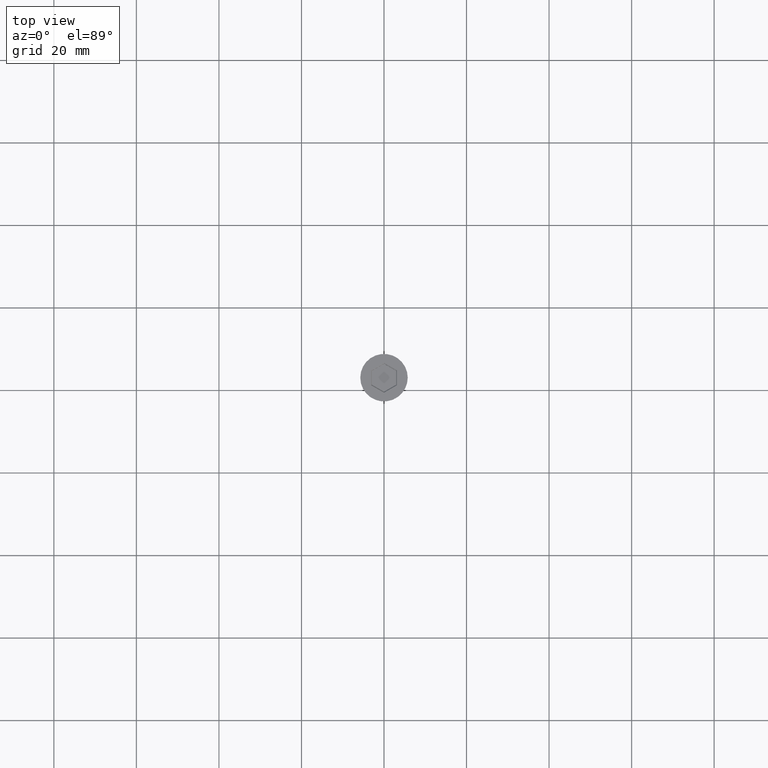
[diagram: clean part render]
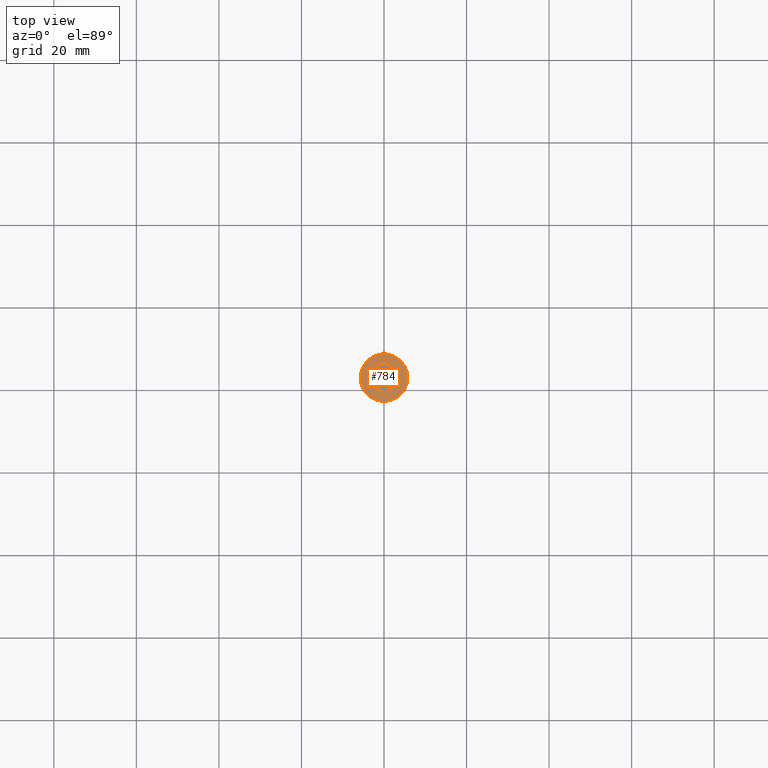
[diagram: same view with one face highlighted and labeled with its STEP entity id]
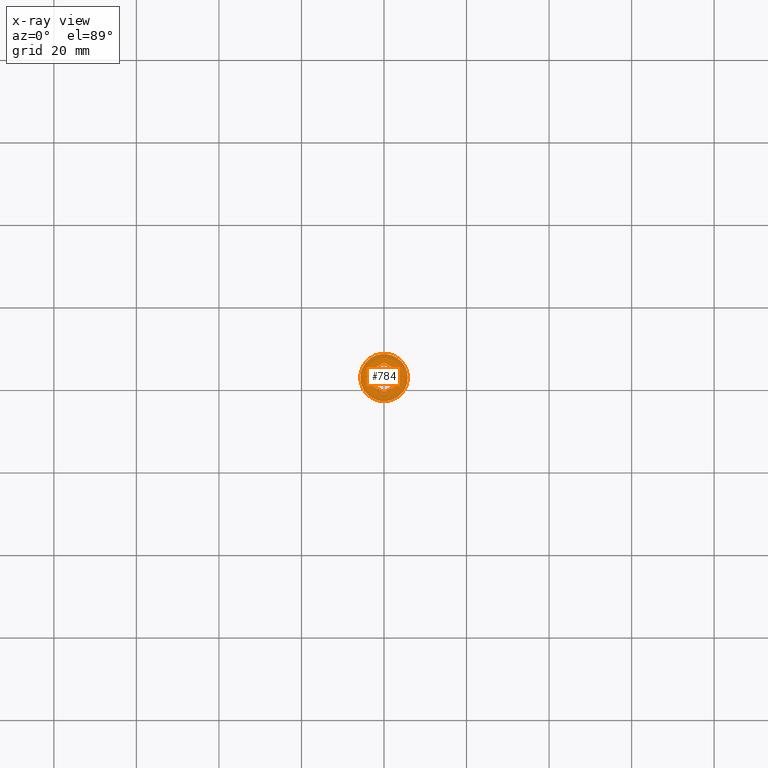
[diagram: x-ray of the same camera — body ghosted, the highlighted face saturated]
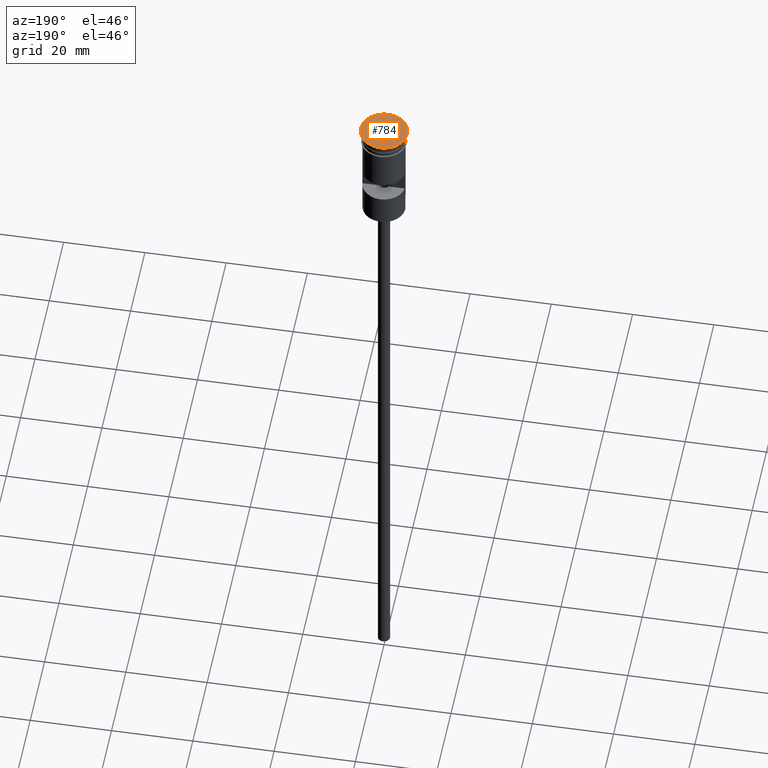
[diagram: same view with one face highlighted and labeled with its STEP entity id]
A machine part, top view. The second image highlights one B-rep face of the part: STEP entity #784.
The next image is the same camera in x-ray: the body ghosted, the highlighted face saturated — about 0% of this face is hidden behind the body in this view.
A second angle (auxiliary view) of the same face is appended — the face is thin or edge-on in the first view.
In plain terms, the highlighted planar face has unit normal (0, -0, 1).
Its self-contained STEP definition (entity closure, byte-faithful):
#7 = VERTEX_POINT ( 'NONE', #709 ) ;
#63 = DIRECTION ( 'NONE',  ( -0.8660254037844387076, -0.4999999999999998890, 0.000000000000000000 ) ) ;
#95 = VERTEX_POINT ( 'NONE', #941 ) ;
#101 = AXIS2_PLACEMENT_3D ( 'NONE', #957, #1086, #571 ) ;
#136 = CARTESIAN_POINT ( 'NONE',  ( -4.546348829811041408E-16, -3.637306695894617636, 0.000000000000000000 ) ) ;
#154 = ORIENTED_EDGE ( 'NONE', *, *, #1314, .T. ) ;
#155 = CARTESIAN_POINT ( 'NONE',  ( 5.750000000000000000, 0.000000000000000000, 0.000000000000000000 ) ) ;
#157 = LINE ( 'NONE', #1383, #1447 ) ;
#171 = VECTOR ( 'NONE', #1378, 1000.000000000000114 ) ;
#173 = AXIS2_PLACEMENT_3D ( 'NONE', #1253, #1577, #950 ) ;
#182 = VERTEX_POINT ( 'NONE', #1228 ) ;
#223 = AXIS2_PLACEMENT_3D ( 'NONE', #843, #477, #1233 ) ;
#276 = EDGE_CURVE ( 'NONE', #1208, #1323, #388, .T. ) ;
#291 = CARTESIAN_POINT ( 'NONE',  ( -3.149999999999978595, 1.703183294109395840, 0.000000000000000000 ) ) ;
#388 = LINE ( 'NONE', #882, #171 ) ;
#406 = DIRECTION ( 'NONE',  ( 0.8660254037844387076, -0.4999999999999998890, 0.000000000000000000 ) ) ;
#419 = LINE ( 'NONE', #291, #1550 ) ;
#446 = ORIENTED_EDGE ( 'NONE', *, *, #1382, .T. ) ;
#462 = EDGE_CURVE ( 'NONE', #95, #972, #922, .T. ) ;
#477 = DIRECTION ( 'NONE',  ( -0.000000000000000000, -0.000000000000000000, 1.000000000000000000 ) ) ;
#521 = EDGE_LOOP ( 'NONE', ( #446, #1439, #1029, #1165, #740, #154 ) ) ;
#533 = VERTEX_POINT ( 'NONE', #136 ) ;
#571 = DIRECTION ( 'NONE',  ( 1.000000000000000000, 0.000000000000000000, 0.000000000000000000 ) ) ;
#581 = EDGE_CURVE ( 'NONE', #1323, #7, #157, .T. ) ;
#609 = EDGE_LOOP ( 'NONE', ( #1594, #777 ) ) ;
#680 = FACE_BOUND ( 'NONE', #521, .T. ) ;
#708 = CARTESIAN_POINT ( 'NONE',  ( -3.095704393061636416E-16, 3.637306695894617192, 0.000000000000000000 ) ) ;
#709 = CARTESIAN_POINT ( 'NONE',  ( 3.149999999999979039, 1.818653347947308596, 0.000000000000000000 ) ) ;
#740 = ORIENTED_EDGE ( 'NONE', *, *, #906, .T. ) ;
#756 = DIRECTION ( 'NONE',  ( -0.8660254037844385966, 0.5000000000000001110, 0.000000000000000000 ) ) ;
#777 = ORIENTED_EDGE ( 'NONE', *, *, #462, .T. ) ;
#784 = ADVANCED_FACE ( 'NONE', ( #680, #1178 ), #1061, .T. ) ;
#790 = DIRECTION ( 'NONE',  ( 0.000000000000000000, 1.000000000000000000, 0.000000000000000000 ) ) ;
#843 = CARTESIAN_POINT ( 'NONE',  ( 0.000000000000000000, 0.000000000000000000, 0.000000000000000000 ) ) ;
#882 = CARTESIAN_POINT ( 'NONE',  ( -0.09999999999998934741, 3.579571668975661147, 0.000000000000000000 ) ) ;
#906 = EDGE_CURVE ( 'NONE', #7, #1078, #1073, .T. ) ;
#922 = CIRCLE ( 'NONE', #223, 5.750000000000000000 ) ;
#941 = CARTESIAN_POINT ( 'NONE',  ( -5.750000000000000000, 7.041719095097280880E-16, 0.000000000000000000 ) ) ;
#950 = DIRECTION ( 'NONE',  ( 1.000000000000000000, 0.000000000000000000, 0.000000000000000000 ) ) ;
#957 = CARTESIAN_POINT ( 'NONE',  ( 0.000000000000000000, 0.000000000000000000, 0.000000000000000000 ) ) ;
#972 = VERTEX_POINT ( 'NONE', #155 ) ;
#982 = CIRCLE ( 'NONE', #101, 5.750000000000000000 ) ;
#1029 = ORIENTED_EDGE ( 'NONE', *, *, #276, .T. ) ;
#1034 = VECTOR ( 'NONE', #63, 1000.000000000000000 ) ;
#1042 = EDGE_CURVE ( 'NONE', #182, #1208, #419, .T. ) ;
#1048 = DIRECTION ( 'NONE',  ( -2.546295930062981593E-16, -1.000000000000000000, 0.000000000000000000 ) ) ;
#1059 = VECTOR ( 'NONE', #1048, 1000.000000000000000 ) ;
#1061 = PLANE ( 'NONE',  #173 ) ;
#1073 = LINE ( 'NONE', #1568, #1059 ) ;
#1078 = VERTEX_POINT ( 'NONE', #1307 ) ;
#1084 = EDGE_CURVE ( 'NONE', #972, #95, #982, .T. ) ;
#1086 = DIRECTION ( 'NONE',  ( -0.000000000000000000, -0.000000000000000000, 1.000000000000000000 ) ) ;
#1165 = ORIENTED_EDGE ( 'NONE', *, *, #581, .T. ) ;
#1178 = FACE_OUTER_BOUND ( 'NONE', #609, .T. ) ;
#1208 = VERTEX_POINT ( 'NONE', #1235 ) ;
#1226 = CARTESIAN_POINT ( 'NONE',  ( -3.049999999999989608, -1.876388374866265085, 0.000000000000000000 ) ) ;
#1228 = CARTESIAN_POINT ( 'NONE',  ( -3.149999999999978595, -1.818653347947308818, 0.000000000000000000 ) ) ;
#1233 = DIRECTION ( 'NONE',  ( 1.000000000000000000, 0.000000000000000000, 0.000000000000000000 ) ) ;
#1235 = CARTESIAN_POINT ( 'NONE',  ( -3.149999999999978595, 1.818653347947308374, 0.000000000000000000 ) ) ;
#1250 = LINE ( 'NONE', #1226, #1397 ) ;
#1253 = CARTESIAN_POINT ( 'NONE',  ( 0.000000000000000000, 0.000000000000000000, 0.000000000000000000 ) ) ;
#1307 = CARTESIAN_POINT ( 'NONE',  ( 3.149999999999978151, -1.818653347947309484, 0.000000000000000000 ) ) ;
#1314 = EDGE_CURVE ( 'NONE', #1078, #533, #1428, .T. ) ;
#1323 = VERTEX_POINT ( 'NONE', #708 ) ;
#1337 = CARTESIAN_POINT ( 'NONE',  ( 0.09999999999998882005, -3.579571668975661591, 0.000000000000000000 ) ) ;
#1378 = DIRECTION ( 'NONE',  ( 0.8660254037844385966, 0.5000000000000001110, 0.000000000000000000 ) ) ;
#1382 = EDGE_CURVE ( 'NONE', #533, #182, #1250, .T. ) ;
#1383 = CARTESIAN_POINT ( 'NONE',  ( 3.049999999999990052, 1.876388374866264863, 0.000000000000000000 ) ) ;
#1397 = VECTOR ( 'NONE', #756, 1000.000000000000114 ) ;
#1428 = LINE ( 'NONE', #1337, #1034 ) ;
#1439 = ORIENTED_EDGE ( 'NONE', *, *, #1042, .T. ) ;
#1447 = VECTOR ( 'NONE', #406, 1000.000000000000000 ) ;
#1550 = VECTOR ( 'NONE', #790, 1000.000000000000000 ) ;
#1568 = CARTESIAN_POINT ( 'NONE',  ( 3.149999999999978151, -1.703183294109396284, 0.000000000000000000 ) ) ;
#1577 = DIRECTION ( 'NONE',  ( 0.000000000000000000, -0.000000000000000000, 1.000000000000000000 ) ) ;
#1594 = ORIENTED_EDGE ( 'NONE', *, *, #1084, .T. ) ;